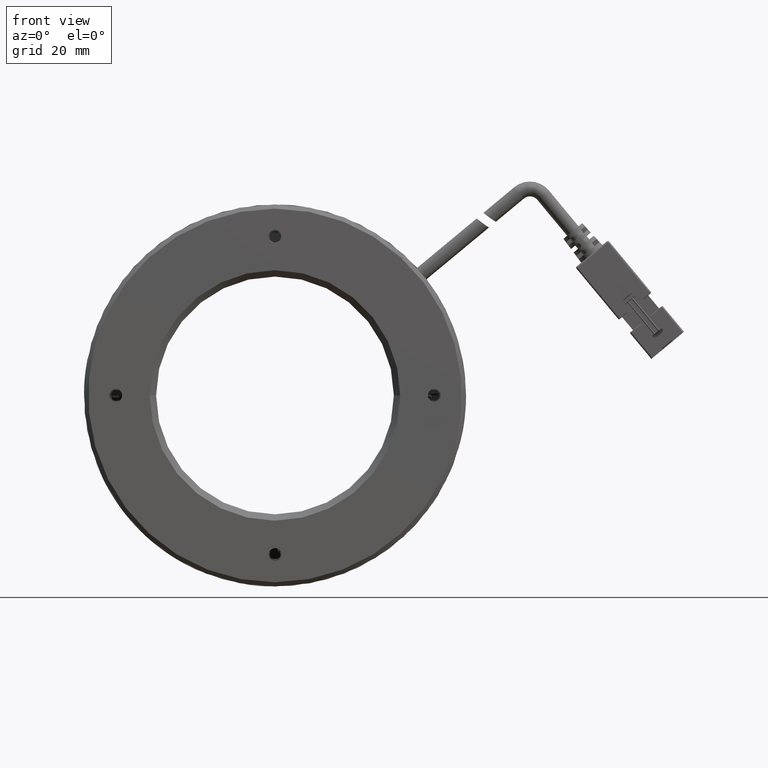
[diagram: clean part render]
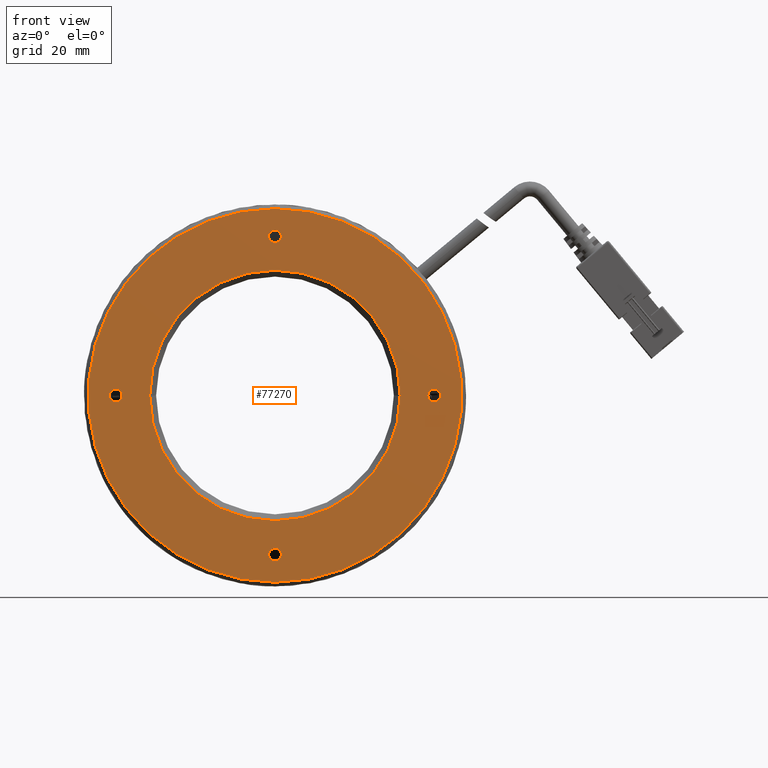
[diagram: same view with one face highlighted and labeled with its STEP entity id]
A machine part, front view. The second image highlights one B-rep face of the part: STEP entity #77270.
In plain terms, the highlighted planar face has unit normal (0, 1, -0).
Its self-contained STEP definition (entity closure, byte-faithful):
#222 = CIRCLE ( 'NONE', #50628, 1.500000000000001300 ) ;
#884 = AXIS2_PLACEMENT_3D ( 'NONE', #30072, #102802, #40508 ) ;
#1084 = EDGE_CURVE ( 'NONE', #61567, #7649, #126398, .T. ) ;
#2930 = CARTESIAN_POINT ( 'NONE',  ( -16.49004085520083900, 16.47876601230220600, -5.297922368082789800 ) ) ;
#4246 = ORIENTED_EDGE ( 'NONE', *, *, #66015, .F. ) ;
#4666 = DIRECTION ( 'NONE',  ( -9.367506770274758300E-017, -1.000000000000000000, 5.200010849845536800E-033 ) ) ;
#5099 = DIRECTION ( 'NONE',  ( -3.487088207641512300E-017, -1.000000000000000000, 1.935722808511237900E-033 ) ) ;
#5255 = DIRECTION ( 'NONE',  ( -5.551115123125782700E-017, 0.0000000000000000000, -1.000000000000000000 ) ) ;
#6354 = FACE_BOUND ( 'NONE', #46970, .T. ) ;
#6673 = DIRECTION ( 'NONE',  ( -9.367506770274758300E-017, -1.000000000000000000, 5.200010849845536800E-033 ) ) ;
#6737 = CARTESIAN_POINT ( 'NONE',  ( -53.99004085520057600, 16.47876601230220600, -39.79792236808317800 ) ) ;
#7649 = VERTEX_POINT ( 'NONE', #6737 ) ;
#7944 = EDGE_CURVE ( 'NONE', #110120, #133362, #91870, .T. ) ;
#9588 = CARTESIAN_POINT ( 'NONE',  ( -16.49004085520083900, 16.47876601230220600, -3.797922368082788000 ) ) ;
#19025 = EDGE_LOOP ( 'NONE', ( #51709, #73907 ) ) ;
#20054 = DIRECTION ( 'NONE',  ( 0.0000000000000000000, 0.0000000000000000000, 1.000000000000000000 ) ) ;
#21663 = CARTESIAN_POINT ( 'NONE',  ( -53.99004085520083900, 16.47876601230221300, -47.79792236808316400 ) ) ;
#21899 = DIRECTION ( 'NONE',  ( 9.367506770274758300E-017, 1.000000000000000000, -5.200010849845536800E-033 ) ) ;
#23905 = EDGE_CURVE ( 'NONE', #24522, #65314, #35224, .T. ) ;
#24522 = VERTEX_POINT ( 'NONE', #21663 ) ;
#25345 = PLANE ( 'NONE',  #55198 ) ;
#26197 = CIRCLE ( 'NONE', #884, 1.500000000000001300 ) ;
#29322 = CARTESIAN_POINT ( 'NONE',  ( -53.99004085520083900, 16.47876601230221300, 40.20207763191680800 ) ) ;
#30072 = CARTESIAN_POINT ( 'NONE',  ( -53.99004085520057600, 16.47876601230220600, -41.29792236808317800 ) ) ;
#31865 = AXIS2_PLACEMENT_3D ( 'NONE', #9588, #82396, #20054 ) ;
#33204 = CARTESIAN_POINT ( 'NONE',  ( -53.99004085520083900, 16.47876601230220600, 33.70207763191682200 ) ) ;
#33555 = EDGE_LOOP ( 'NONE', ( #81813, #69057 ) ) ;
#34067 = FACE_BOUND ( 'NONE', #35355, .T. ) ;
#35224 = CIRCLE ( 'NONE', #83333, 43.99999999999998600 ) ;
#35355 = EDGE_LOOP ( 'NONE', ( #84402, #133045 ) ) ;
#36405 = VERTEX_POINT ( 'NONE', #79411 ) ;
#40508 = DIRECTION ( 'NONE',  ( 0.0000000000000000000, 0.0000000000000000000, 1.000000000000000000 ) ) ;
#41184 = AXIS2_PLACEMENT_3D ( 'NONE', #42168, #114867, #52662 ) ;
#41844 = DIRECTION ( 'NONE',  ( 9.367506770274758300E-017, 1.000000000000000000, -5.200010849845536800E-033 ) ) ;
#42089 = CARTESIAN_POINT ( 'NONE',  ( -53.99004085520083900, 16.47876601230220600, 35.20207763191682200 ) ) ;
#42168 = CARTESIAN_POINT ( 'NONE',  ( -53.99004085520083900, 16.47876601230220600, 33.70207763191682200 ) ) ;
#42258 = CARTESIAN_POINT ( 'NONE',  ( -53.99004085520083900, 16.47876601230220600, 32.20207763191682200 ) ) ;
#43591 = CARTESIAN_POINT ( 'NONE',  ( -53.99004085520057600, 16.47876601230220600, -42.79792236808317800 ) ) ;
#43661 = DIRECTION ( 'NONE',  ( 0.0000000000000000000, 0.0000000000000000000, 1.000000000000000000 ) ) ;
#45578 = DIRECTION ( 'NONE',  ( 0.0000000000000000000, 0.0000000000000000000, 1.000000000000000000 ) ) ;
#45842 = CARTESIAN_POINT ( 'NONE',  ( -53.99004085520057600, 16.47876601230220600, -41.29792236808317800 ) ) ;
#46023 = DIRECTION ( 'NONE',  ( -9.367506770274758300E-017, -1.000000000000000000, 5.200010849845536800E-033 ) ) ;
#46970 = EDGE_LOOP ( 'NONE', ( #4246, #111934 ) ) ;
#48125 = ORIENTED_EDGE ( 'NONE', *, *, #120727, .F. ) ;
#49058 = CARTESIAN_POINT ( 'NONE',  ( -53.99004085520083900, 16.47876601230220600, -3.797922368083179700 ) ) ;
#50628 = AXIS2_PLACEMENT_3D ( 'NONE', #52565, #125247, #62986 ) ;
#50842 = VERTEX_POINT ( 'NONE', #113771 ) ;
#51709 = ORIENTED_EDGE ( 'NONE', *, *, #23905, .F. ) ;
#52565 = CARTESIAN_POINT ( 'NONE',  ( -16.49004085520083900, 16.47876601230220600, -3.797922368082788000 ) ) ;
#52662 = DIRECTION ( 'NONE',  ( 0.0000000000000000000, 0.0000000000000000000, 1.000000000000000000 ) ) ;
#55198 = AXIS2_PLACEMENT_3D ( 'NONE', #129945, #67645, #5255 ) ;
#55297 = ORIENTED_EDGE ( 'NONE', *, *, #76366, .F. ) ;
#56569 = VERTEX_POINT ( 'NONE', #2930 ) ;
#58475 = FACE_BOUND ( 'NONE', #33555, .T. ) ;
#59120 = EDGE_CURVE ( 'NONE', #56569, #80257, #222, .T. ) ;
#59495 = DIRECTION ( 'NONE',  ( -1.000000000000000000, 0.0000000000000000000, 5.880418562633246000E-017 ) ) ;
#59856 = AXIS2_PLACEMENT_3D ( 'NONE', #69079, #6673, #79514 ) ;
#61567 = VERTEX_POINT ( 'NONE', #43591 ) ;
#62986 = DIRECTION ( 'NONE',  ( 0.0000000000000000000, 0.0000000000000000000, 1.000000000000000000 ) ) ;
#63032 = AXIS2_PLACEMENT_3D ( 'NONE', #49058, #121749, #59495 ) ;
#65314 = VERTEX_POINT ( 'NONE', #29322 ) ;
#66015 = EDGE_CURVE ( 'NONE', #80257, #56569, #120576, .T. ) ;
#67060 = CARTESIAN_POINT ( 'NONE',  ( -91.49004085520083200, 16.47876601230221300, -3.797922368083309400 ) ) ;
#67499 = CARTESIAN_POINT ( 'NONE',  ( -53.99004085520083900, 16.47876601230220600, -3.797922368083179700 ) ) ;
#67645 = DIRECTION ( 'NONE',  ( 9.367506770274758300E-017, 1.000000000000000000, -5.200010849845536800E-033 ) ) ;
#68371 = VERTEX_POINT ( 'NONE', #77266 ) ;
#69057 = ORIENTED_EDGE ( 'NONE', *, *, #123789, .F. ) ;
#69079 = CARTESIAN_POINT ( 'NONE',  ( -91.49004085520083200, 16.47876601230221300, -3.797922368083309400 ) ) ;
#73907 = ORIENTED_EDGE ( 'NONE', *, *, #116534, .F. ) ;
#76366 = EDGE_CURVE ( 'NONE', #7649, #61567, #26197, .T. ) ;
#77266 = CARTESIAN_POINT ( 'NONE',  ( -83.49004085520083200, 16.47876601230220600, -3.797922368083178000 ) ) ;
#77270 = ADVANCED_FACE ( 'NONE', ( #34067, #113730, #89392, #6354, #86183, #58475 ), #25345, .F. ) ;
#77505 = DIRECTION ( 'NONE',  ( 0.0000000000000000000, 0.0000000000000000000, 1.000000000000000000 ) ) ;
#77958 = DIRECTION ( 'NONE',  ( -1.000000000000000000, 0.0000000000000000000, 5.880418562633246000E-017 ) ) ;
#79411 = CARTESIAN_POINT ( 'NONE',  ( -24.49004085520084200, 16.47876601230220600, -3.797922368083185100 ) ) ;
#79514 = DIRECTION ( 'NONE',  ( 0.0000000000000000000, 0.0000000000000000000, 1.000000000000000000 ) ) ;
#80257 = VERTEX_POINT ( 'NONE', #86936 ) ;
#81813 = ORIENTED_EDGE ( 'NONE', *, *, #100013, .F. ) ;
#82396 = DIRECTION ( 'NONE',  ( -9.367506770274758300E-017, -1.000000000000000000, 5.200010849845536800E-033 ) ) ;
#83162 = AXIS2_PLACEMENT_3D ( 'NONE', #33204, #105932, #43661 ) ;
#83333 = AXIS2_PLACEMENT_3D ( 'NONE', #104105, #41844, #114537 ) ;
#84216 = CARTESIAN_POINT ( 'NONE',  ( -53.99004085520083900, 16.47876601230221300, -3.797922368083179700 ) ) ;
#84402 = ORIENTED_EDGE ( 'NONE', *, *, #89261, .F. ) ;
#85689 = CIRCLE ( 'NONE', #83162, 1.500000000000001300 ) ;
#86183 = FACE_OUTER_BOUND ( 'NONE', #19025, .T. ) ;
#86936 = CARTESIAN_POINT ( 'NONE',  ( -16.49004085520083900, 16.47876601230220600, -2.297922368082786700 ) ) ;
#89261 = EDGE_CURVE ( 'NONE', #133362, #110120, #85689, .T. ) ;
#89392 = FACE_BOUND ( 'NONE', #102127, .T. ) ;
#91870 = CIRCLE ( 'NONE', #41184, 1.500000000000001300 ) ;
#94649 = DIRECTION ( 'NONE',  ( 0.0000000000000000000, 0.0000000000000000000, -1.000000000000000000 ) ) ;
#95415 = EDGE_LOOP ( 'NONE', ( #48125, #115782 ) ) ;
#98538 = CIRCLE ( 'NONE', #59856, 1.500000000000001300 ) ;
#98579 = CIRCLE ( 'NONE', #114847, 29.49999999999999300 ) ;
#98999 = CIRCLE ( 'NONE', #99567, 43.99999999999998600 ) ;
#99567 = AXIS2_PLACEMENT_3D ( 'NONE', #84216, #21899, #94649 ) ;
#100013 = EDGE_CURVE ( 'NONE', #68371, #36405, #110450, .T. ) ;
#101696 = EDGE_CURVE ( 'NONE', #50842, #103009, #98538, .T. ) ;
#102127 = EDGE_LOOP ( 'NONE', ( #55297, #133723 ) ) ;
#102802 = DIRECTION ( 'NONE',  ( -9.367506770274758300E-017, -1.000000000000000000, 5.200010849845536800E-033 ) ) ;
#103009 = VERTEX_POINT ( 'NONE', #116035 ) ;
#104105 = CARTESIAN_POINT ( 'NONE',  ( -53.99004085520083900, 16.47876601230221300, -3.797922368083179700 ) ) ;
#105932 = DIRECTION ( 'NONE',  ( -9.367506770274758300E-017, -1.000000000000000000, 5.200010849845536800E-033 ) ) ;
#108041 = CIRCLE ( 'NONE', #109896, 1.500000000000001300 ) ;
#109896 = AXIS2_PLACEMENT_3D ( 'NONE', #67060, #4666, #77505 ) ;
#110120 = VERTEX_POINT ( 'NONE', #42258 ) ;
#110450 = CIRCLE ( 'NONE', #63032, 29.49999999999999300 ) ;
#111934 = ORIENTED_EDGE ( 'NONE', *, *, #59120, .F. ) ;
#113730 = FACE_BOUND ( 'NONE', #95415, .T. ) ;
#113771 = CARTESIAN_POINT ( 'NONE',  ( -91.49004085520083200, 16.47876601230221300, -5.297922368083310300 ) ) ;
#114537 = DIRECTION ( 'NONE',  ( 0.0000000000000000000, 0.0000000000000000000, -1.000000000000000000 ) ) ;
#114847 = AXIS2_PLACEMENT_3D ( 'NONE', #67499, #5099, #77958 ) ;
#114867 = DIRECTION ( 'NONE',  ( -9.367506770274758300E-017, -1.000000000000000000, 5.200010849845536800E-033 ) ) ;
#115782 = ORIENTED_EDGE ( 'NONE', *, *, #101696, .F. ) ;
#116035 = CARTESIAN_POINT ( 'NONE',  ( -91.49004085520083200, 16.47876601230221300, -2.297922368083308100 ) ) ;
#116534 = EDGE_CURVE ( 'NONE', #65314, #24522, #98999, .T. ) ;
#120576 = CIRCLE ( 'NONE', #31865, 1.500000000000001300 ) ;
#120727 = EDGE_CURVE ( 'NONE', #103009, #50842, #108041, .T. ) ;
#121749 = DIRECTION ( 'NONE',  ( -3.487088207641512300E-017, -1.000000000000000000, 1.935722808511237900E-033 ) ) ;
#123789 = EDGE_CURVE ( 'NONE', #36405, #68371, #98579, .T. ) ;
#125247 = DIRECTION ( 'NONE',  ( -9.367506770274758300E-017, -1.000000000000000000, 5.200010849845536800E-033 ) ) ;
#126398 = CIRCLE ( 'NONE', #130557, 1.500000000000001300 ) ;
#129945 = CARTESIAN_POINT ( 'NONE',  ( -25.99004085520082800, 16.47876601230220600, -3.797922368083181500 ) ) ;
#130557 = AXIS2_PLACEMENT_3D ( 'NONE', #45842, #46023, #45578 ) ;
#133045 = ORIENTED_EDGE ( 'NONE', *, *, #7944, .F. ) ;
#133362 = VERTEX_POINT ( 'NONE', #42089 ) ;
#133723 = ORIENTED_EDGE ( 'NONE', *, *, #1084, .F. ) ;